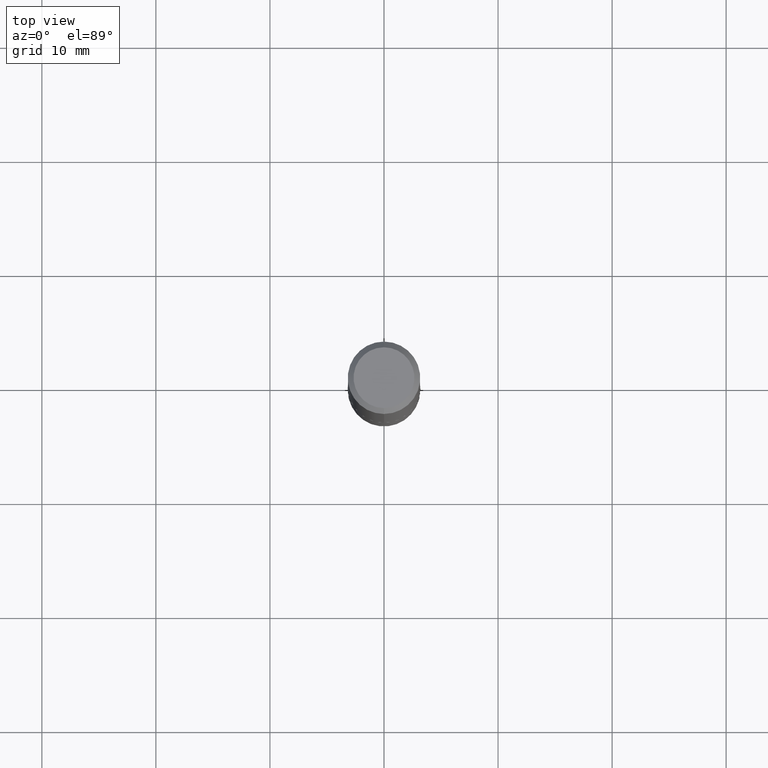
[diagram: clean part render]
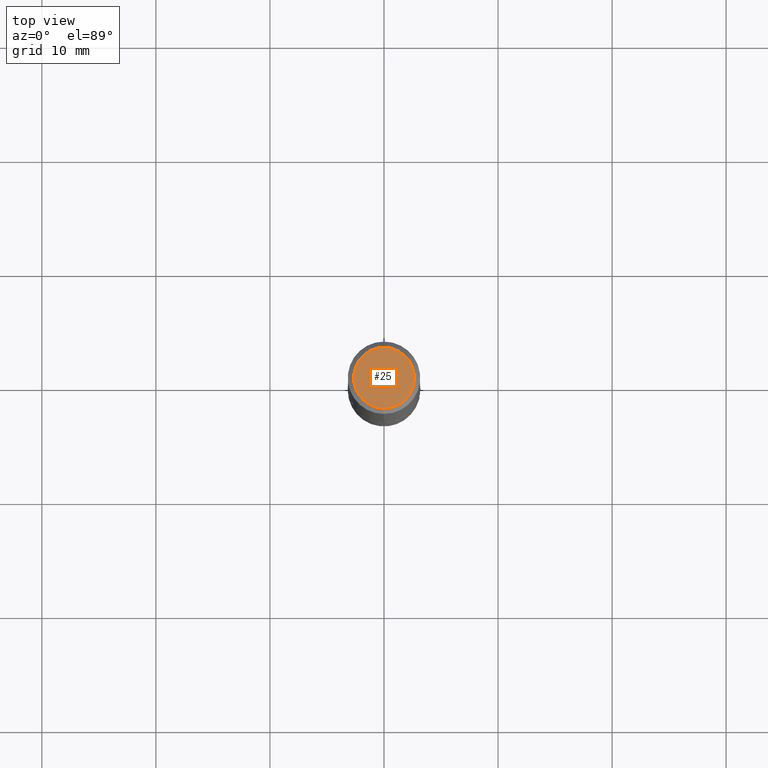
[diagram: same view with one face highlighted and labeled with its STEP entity id]
A machine part, top view. The second image highlights one B-rep face of the part: STEP entity #25.
In plain terms, the highlighted planar face has unit normal (0, -0, -1).
Its self-contained STEP definition (entity closure, byte-faithful):
#11 = ORIENTED_EDGE ( 'NONE', *, *, #268, .T. ) ;
#25 = ADVANCED_FACE ( 'NONE', ( #61 ), #343, .F. ) ;
#34 = ORIENTED_EDGE ( 'NONE', *, *, #128, .T. ) ;
#50 = DIRECTION ( 'NONE',  ( 6.982962677686265922E-15, 1.000000000000000000, -3.491424892550405992E-15 ) ) ;
#61 = FACE_OUTER_BOUND ( 'NONE', #376, .T. ) ;
#72 = DIRECTION ( 'NONE',  ( -2.445508222420686392E-29, 3.491424892550405598E-15, 1.000000000000000000 ) ) ;
#91 = DIRECTION ( 'NONE',  ( -6.982962677686265922E-15, -1.000000000000000000, 3.491424892550405203E-15 ) ) ;
#119 = CARTESIAN_POINT ( 'NONE',  ( -3.444620247508492526E-45, 4.917846019601490628E-31, 1.408549853125758547E-16 ) ) ;
#128 = EDGE_CURVE ( 'NONE', #351, #290, #178, .T. ) ;
#178 = CIRCLE ( 'NONE', #331, 0.1049999999999998712 ) ;
#182 = DIRECTION ( 'NONE',  ( -6.982962677686265922E-15, -1.000000000000000000, 3.491424892550405203E-15 ) ) ;
#195 = CARTESIAN_POINT ( 'NONE',  ( -7.889572697437253250E-16, -0.1049999999999998712, 5.074545990303680214E-16 ) ) ;
#202 = AXIS2_PLACEMENT_3D ( 'NONE', #354, #72, #91 ) ;
#268 = EDGE_CURVE ( 'NONE', #290, #351, #324, .T. ) ;
#277 = CARTESIAN_POINT ( 'NONE',  ( 7.332110811570570383E-16, 0.1049999999999998712, -2.961721210615041531E-16 ) ) ;
#290 = VERTEX_POINT ( 'NONE', #414 ) ;
#324 = CIRCLE ( 'NONE', #202, 0.1049999999999998712 ) ;
#331 = AXIS2_PLACEMENT_3D ( 'NONE', #119, #375, #182 ) ;
#337 = DIRECTION ( 'NONE',  ( 2.445508222420685832E-29, -3.491424892550405992E-15, -1.000000000000000000 ) ) ;
#343 = PLANE ( 'NONE',  #352 ) ;
#351 = VERTEX_POINT ( 'NONE', #195 ) ;
#352 = AXIS2_PLACEMENT_3D ( 'NONE', #277, #337, #50 ) ;
#354 = CARTESIAN_POINT ( 'NONE',  ( -3.444620247508492526E-45, 4.917846019601490628E-31, 1.408549853125758547E-16 ) ) ;
#375 = DIRECTION ( 'NONE',  ( -2.445508222420686392E-29, 3.491424892550405598E-15, 1.000000000000000000 ) ) ;
#376 = EDGE_LOOP ( 'NONE', ( #11, #34 ) ) ;
#414 = CARTESIAN_POINT ( 'NONE',  ( 8.030407079339204351E-16, 0.1049999999999998712, -2.257446284052162627E-16 ) ) ;